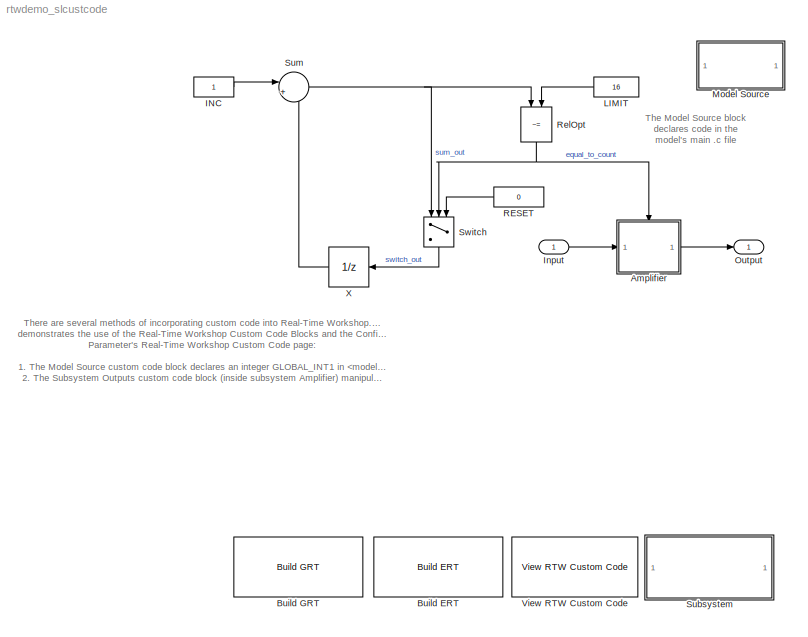
MODEL rtwdemo_slcustcode
KIND model
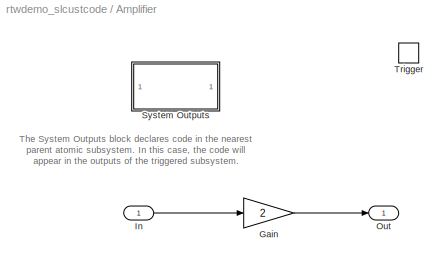
BLOCK [SubSystem] Amplifier
  MinAlgLoopOccurrences = off
  Ports = [1, 1, 0, 1]
  PropExecContextAcrossSSBoundary = on
  RTWSystemCode = Auto
  TreatAsAtomicUnit = on
BLOCK [Gain] Amplifier/Gain
  Gain = 2
  SaturateOnIntegerOverflow = off
BLOCK [Inport] Amplifier/In
  IconDisplay = Port number
  LatchInput = off
  Port = 1
BLOCK [Outport] Amplifier/Out
  BusOutputAsStruct = off
  IconDisplay = Port number
  InitialOutput = 0
BLOCK [SubSystem] Amplifier/System Outputs
  CopyFcn = cccopyfcn(gcb)
  MaskDescription = Add code to a systems Outputs function
  MaskDisplay = disp('System\\nOutputs');
  MaskHelp = This block contains text fields to insert custom user code sections at the declaration, execution and exit sections of the systems outputs function.  By placing this block inside a subsytem, the custom user code will appear in that subsystems function.
  MaskIconFrame = on
  MaskIconOpaque = on
  MaskIconRotate = none
  MaskIconUnits = autoscale
  MaskType = System Outputs
  MinAlgLoopOccurrences = off
  OpenFcn = ccopenfcn('System Outputs Function')
  Ports = []
  PropExecContextAcrossSSBoundary = on
  RTWSystemCode = Auto
  TreatAsAtomicUnit = off
BLOCK [TriggerPort] Amplifier/Trigger
  Ports = []
BLOCK [Reference] Build ERT  REF=rtwdemowidgets/Build ERT
  Ports = []
  ShowPortLabels = on
  SourceBlock = rtwdemowidgets/Build ERT
  SourceType = Unknown
  attrib_overrides = {}
BLOCK [Reference] Build GRT  REF=rtwdemowidgets/Build GRT
  Ports = []
  ShowPortLabels = on
  SourceBlock = rtwdemowidgets/Build GRT
  SourceType = Unknown
  attrib_overrides = {}
BLOCK [Constant] INC
BLOCK [Inport] Input
  DataType = int32
  IconDisplay = Port number
  LatchInput = off
  Port = 1
BLOCK [Constant] LIMIT
  Value = 16
BLOCK [SubSystem] Model Source
  CopyFcn = cccopyfcn(gcb)
  MaskDescription = Add code to the model .c file
  MaskDisplay = disp('Model\\nSource');
  MaskHelp = This source file block contains text fields to insert custom user code at the top and bottom of model.c file.
  MaskIconFrame = on
  MaskIconOpaque = on
  MaskIconRotate = none
  MaskIconUnits = autoscale
  MaskType = Model Source
  MinAlgLoopOccurrences = off
  OpenFcn = ccopenfcn('Model Source')
  Ports = []
  PropExecContextAcrossSSBoundary = on
  RTWSystemCode = Auto
  TreatAsAtomicUnit = off
BLOCK [Outport] Output
  BusOutputAsStruct = off
  IconDisplay = Port number
BLOCK [Constant] RESET
  Value = 0
BLOCK [RelationalOperator] RelOpt
  Operator = ~=
BLOCK [SubSystem] Subsystem
  MaskDisplay = disp(['View Custom\\nCode ',...\n	  'Library\\n(double-click)'])
  MaskIconFrame = on
  MaskIconOpaque = on
  MaskIconRotate = none
  MaskIconUnits = autoscale
  MinAlgLoopOccurrences = off
  OpenFcn = custcode
  Ports = []
  PropExecContextAcrossSSBoundary = on
  RTWSystemCode = Auto
  TreatAsAtomicUnit = off
BLOCK [Sum] Sum
  IconShape = round
  Inputs = |++
  Ports = [2, 1]
  SaturateOnIntegerOverflow = off
BLOCK [Switch] Switch
  Threshold = .5
BLOCK [Reference] View RTW Custom Code  REF=rtwdemowidgets/View RTW Custom Code
  Ports = []
  ShowPortLabels = on
  SourceBlock = rtwdemowidgets/View RTW Custom Code
  SourceType = Unknown
BLOCK [UnitDelay] X
  StateIdentifier = X
ANNOTATION (root): The Model Source block\ndeclares code in the\nmodel's main .c file
ANNOTATION (root): There are several methods of incorporating custom code into Real-Time Workshop. This model\ndemonstrates the use of the Real-Time Workshop Custom Code Blocks and the Configuration\nParameter's Real-Time Workshop Custom Code page:\n\n1. The Model Source custom code block declares an integer GLOBAL_INT1 in .c\n2. The Subsystem Outputs custom code block (inside subsystem Amplifier) manipulates GLOBAL...<+393ch>
ANNOTATION Amplifier: The System Outputs block declares code in the nearest\nparent atomic subsystem. In this case, the code will\nappear in the outputs of the triggered subsystem.
LINE Amplifier/Gain:1 -> Amplifier/Out:1
LINE Amplifier/In:1 -> Amplifier/Gain:1
LINE Amplifier:1 -> Output:1
LINE INC:1 -> Sum:1
LINE Input:1 -> Amplifier:1
LINE LIMIT:1 -> RelOpt:2
LINE RESET:1 -> Switch:3
NET RelOpt:1 -> Amplifier:trigger, Switch:2
NET Sum:1 -> RelOpt:1, Switch:1
LINE Switch:1 -> X:1
LINE X:1 -> Sum:2
note: NET lines group one-source signal fan-out (src -> all destinations, sorted); 1:1 wires keep LINE
